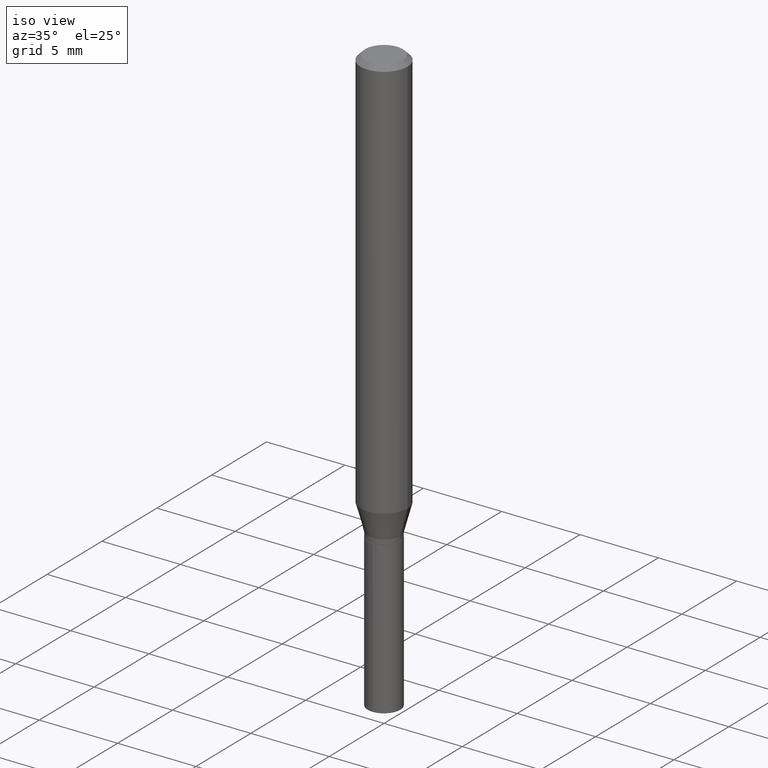
[diagram: clean part render]
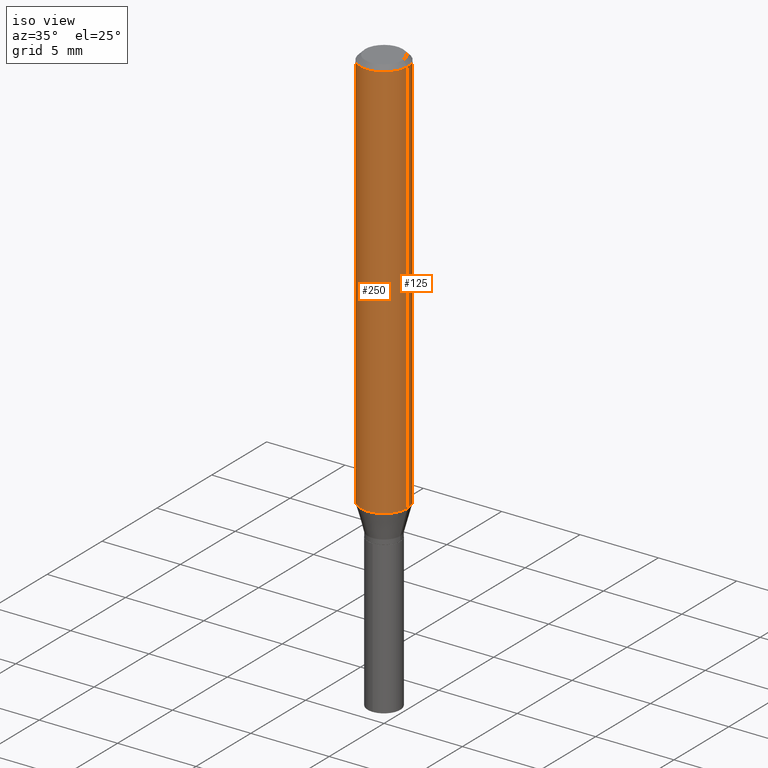
[diagram: same view with one multi-face feature highlighted, each face labeled with its STEP entity id]
A machine part, iso view. The highlighted faces form ONE feature: a constant-radius fillet chain: 2 tangent blend faces with common blend radius 1.4999 mm. The faces share edges in the B-rep.
Their STEP definitions:
[1] entity #125 (Cylinder):
#42 = EDGE_CURVE ( 'NONE', #347, #488, #369, .T. ) ;
#48 = ORIENTED_EDGE ( 'NONE', *, *, #283, .F. ) ;
#54 = DIRECTION ( 'NONE',  ( -2.445468806185136597E-29, 3.491481338843145583E-15, 1.000000000000000000 ) ) ;
#59 = ORIENTED_EDGE ( 'NONE', *, *, #176, .T. ) ;
#60 = DIRECTION ( 'NONE',  ( -2.445468806185136597E-29, 3.491481338843145583E-15, 1.000000000000000000 ) ) ;
#81 = ORIENTED_EDGE ( 'NONE', *, *, #42, .T. ) ;
#87 = CYLINDRICAL_SURFACE ( 'NONE', #413, 0.05905000000000006771 ) ;
#94 = AXIS2_PLACEMENT_3D ( 'NONE', #387, #54, #306 ) ;
#121 = DIRECTION ( 'NONE',  ( 1.000000000000000000, -6.982962677686266711E-15, 4.876176775795936353E-29 ) ) ;
#125 = ADVANCED_FACE ( 'NONE', ( #234 ), #87, .T. ) ;
#132 = CARTESIAN_POINT ( 'NONE',  ( 0.05905000000000000526, -4.535783407291119586E-16, -0.01181000000000007565 ) ) ;
#140 = CARTESIAN_POINT ( 'NONE',  ( -0.05905000000000000526, -1.372357273247871275E-15, -0.01181000000000007565 ) ) ;
#141 = CARTESIAN_POINT ( 'NONE',  ( -0.05905000000000006771, 4.195754854663396409E-16, -2.904631170795525045E-30 ) ) ;
#151 = VERTEX_POINT ( 'NONE', #375 ) ;
#176 = EDGE_CURVE ( 'NONE', #151, #347, #441, .T. ) ;
#186 = DIRECTION ( 'NONE',  ( -2.445468806185136877E-29, 3.491481338843145188E-15, 1.000000000000000000 ) ) ;
#194 = CARTESIAN_POINT ( 'NONE',  ( 0.000000000000000000, 0.000000000000000000, 0.000000000000000000 ) ) ;
#227 = VECTOR ( 'NONE', #362, 39.37007874015748143 ) ;
#234 = FACE_OUTER_BOUND ( 'NONE', #327, .T. ) ;
#243 = CARTESIAN_POINT ( 'NONE',  ( 2.888098660104664642E-31, -4.123439461173780879E-17, -0.01181000000000007565 ) ) ;
#283 = EDGE_CURVE ( 'NONE', #308, #488, #443, .T. ) ;
#286 = LINE ( 'NONE', #435, #227 ) ;
#304 = AXIS2_PLACEMENT_3D ( 'NONE', #243, #60, #420 ) ;
#306 = DIRECTION ( 'NONE',  ( 1.000000000000000000, -6.982962677686265133E-15, 0.000000000000000000 ) ) ;
#308 = VERTEX_POINT ( 'NONE', #132 ) ;
#327 = EDGE_LOOP ( 'NONE', ( #59, #81, #48, #386 ) ) ;
#347 = VERTEX_POINT ( 'NONE', #391 ) ;
#349 = DIRECTION ( 'NONE',  ( -2.445468806185136597E-29, 3.491481338843145583E-15, 1.000000000000000000 ) ) ;
#362 = DIRECTION ( 'NONE',  ( -2.445468806185136877E-29, 3.491481338843145188E-15, 1.000000000000000000 ) ) ;
#369 = LINE ( 'NONE', #141, #440 ) ;
#375 = CARTESIAN_POINT ( 'NONE',  ( 0.05905000000000013016, -3.954975068934059911E-15, -1.014649880383003078 ) ) ;
#386 = ORIENTED_EDGE ( 'NONE', *, *, #403, .F. ) ;
#387 = CARTESIAN_POINT ( 'NONE',  ( 2.481294631676114097E-29, -3.542631122816684991E-15, -1.014649880383003078 ) ) ;
#391 = CARTESIAN_POINT ( 'NONE',  ( -0.05905000000000013016, -3.123055637350344709E-15, -1.014649880383003078 ) ) ;
#403 = EDGE_CURVE ( 'NONE', #151, #308, #286, .T. ) ;
#413 = AXIS2_PLACEMENT_3D ( 'NONE', #194, #349, #121 ) ;
#420 = DIRECTION ( 'NONE',  ( 1.000000000000000000, -6.982962677686268288E-15, 0.000000000000000000 ) ) ;
#435 = CARTESIAN_POINT ( 'NONE',  ( 0.05905000000000006771, -4.123439461173745257E-16, 2.879382386107503723E-30 ) ) ;
#440 = VECTOR ( 'NONE', #186, 39.37007874015748143 ) ;
#441 = CIRCLE ( 'NONE', #94, 0.05905000000000013016 ) ;
#443 = CIRCLE ( 'NONE', #304, 0.05905000000000000526 ) ;
#488 = VERTEX_POINT ( 'NONE', #140 ) ;
[2] entity #250 (Cylinder):
#31 = CIRCLE ( 'NONE', #220, 0.05905000000000000526 ) ;
#42 = EDGE_CURVE ( 'NONE', #347, #488, #369, .T. ) ;
#53 = EDGE_CURVE ( 'NONE', #347, #151, #296, .T. ) ;
#85 = CARTESIAN_POINT ( 'NONE',  ( 0.000000000000000000, 0.000000000000000000, 0.000000000000000000 ) ) ;
#91 = FACE_OUTER_BOUND ( 'NONE', #344, .T. ) ;
#132 = CARTESIAN_POINT ( 'NONE',  ( 0.05905000000000000526, -4.535783407291119586E-16, -0.01181000000000007565 ) ) ;
#140 = CARTESIAN_POINT ( 'NONE',  ( -0.05905000000000000526, -1.372357273247871275E-15, -0.01181000000000007565 ) ) ;
#141 = CARTESIAN_POINT ( 'NONE',  ( -0.05905000000000006771, 4.195754854663396409E-16, -2.904631170795525045E-30 ) ) ;
#151 = VERTEX_POINT ( 'NONE', #375 ) ;
#173 = DIRECTION ( 'NONE',  ( -2.445468806185136597E-29, 3.491481338843145583E-15, 1.000000000000000000 ) ) ;
#174 = AXIS2_PLACEMENT_3D ( 'NONE', #85, #197, #200 ) ;
#186 = DIRECTION ( 'NONE',  ( -2.445468806185136877E-29, 3.491481338843145188E-15, 1.000000000000000000 ) ) ;
#197 = DIRECTION ( 'NONE',  ( -2.445468806185136597E-29, 3.491481338843145583E-15, 1.000000000000000000 ) ) ;
#200 = DIRECTION ( 'NONE',  ( 1.000000000000000000, -6.982962677686266711E-15, 4.876176775795936353E-29 ) ) ;
#220 = AXIS2_PLACEMENT_3D ( 'NONE', #434, #173, #473 ) ;
#224 = ORIENTED_EDGE ( 'NONE', *, *, #42, .F. ) ;
#227 = VECTOR ( 'NONE', #362, 39.37007874015748143 ) ;
#250 = ADVANCED_FACE ( 'NONE', ( #91 ), #460, .T. ) ;
#265 = CARTESIAN_POINT ( 'NONE',  ( 2.481294631676114097E-29, -3.542631122816684991E-15, -1.014649880383003078 ) ) ;
#286 = LINE ( 'NONE', #435, #227 ) ;
#296 = CIRCLE ( 'NONE', #401, 0.05905000000000013016 ) ;
#301 = ORIENTED_EDGE ( 'NONE', *, *, #53, .T. ) ;
#308 = VERTEX_POINT ( 'NONE', #132 ) ;
#336 = DIRECTION ( 'NONE',  ( 1.000000000000000000, -6.982962677686265133E-15, 0.000000000000000000 ) ) ;
#344 = EDGE_LOOP ( 'NONE', ( #224, #301, #410, #412 ) ) ;
#347 = VERTEX_POINT ( 'NONE', #391 ) ;
#351 = EDGE_CURVE ( 'NONE', #488, #308, #31, .T. ) ;
#362 = DIRECTION ( 'NONE',  ( -2.445468806185136877E-29, 3.491481338843145188E-15, 1.000000000000000000 ) ) ;
#369 = LINE ( 'NONE', #141, #440 ) ;
#375 = CARTESIAN_POINT ( 'NONE',  ( 0.05905000000000013016, -3.954975068934059911E-15, -1.014649880383003078 ) ) ;
#391 = CARTESIAN_POINT ( 'NONE',  ( -0.05905000000000013016, -3.123055637350344709E-15, -1.014649880383003078 ) ) ;
#401 = AXIS2_PLACEMENT_3D ( 'NONE', #265, #446, #336 ) ;
#403 = EDGE_CURVE ( 'NONE', #151, #308, #286, .T. ) ;
#410 = ORIENTED_EDGE ( 'NONE', *, *, #403, .T. ) ;
#412 = ORIENTED_EDGE ( 'NONE', *, *, #351, .F. ) ;
#434 = CARTESIAN_POINT ( 'NONE',  ( 2.888098660104664642E-31, -4.123439461173780879E-17, -0.01181000000000007565 ) ) ;
#435 = CARTESIAN_POINT ( 'NONE',  ( 0.05905000000000006771, -4.123439461173745257E-16, 2.879382386107503723E-30 ) ) ;
#440 = VECTOR ( 'NONE', #186, 39.37007874015748143 ) ;
#446 = DIRECTION ( 'NONE',  ( -2.445468806185136597E-29, 3.491481338843145583E-15, 1.000000000000000000 ) ) ;
#460 = CYLINDRICAL_SURFACE ( 'NONE', #174, 0.05905000000000006771 ) ;
#473 = DIRECTION ( 'NONE',  ( 1.000000000000000000, -6.982962677686268288E-15, 0.000000000000000000 ) ) ;
#488 = VERTEX_POINT ( 'NONE', #140 ) ;